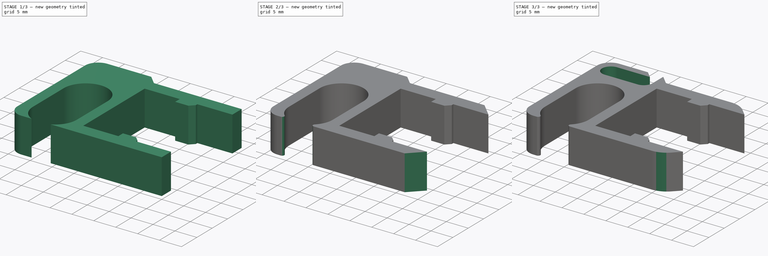
[diagram: build sequence overview — one tinted view per stage of 3, left to right]
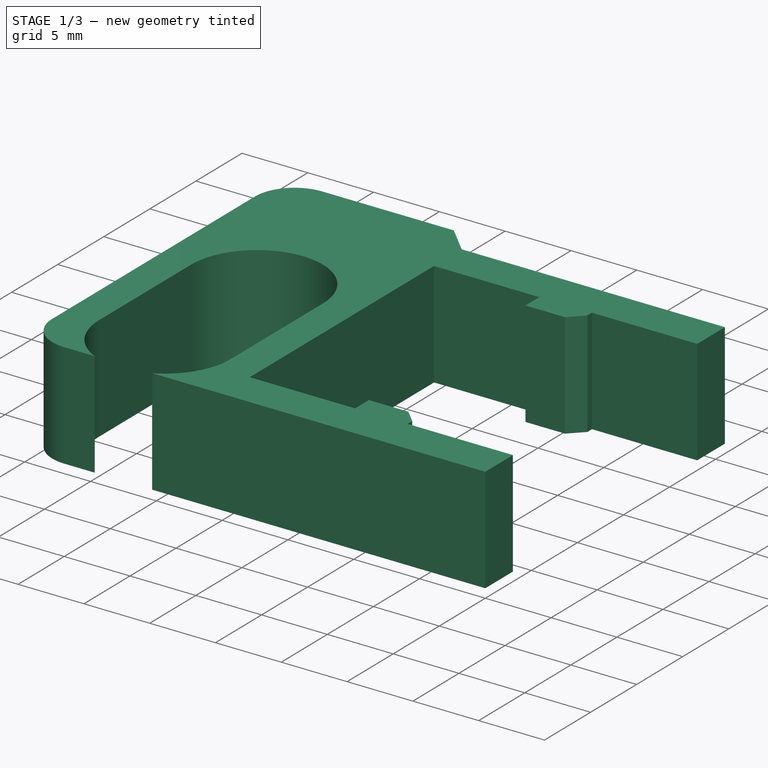
[diagram: stage 1 of 3 — iso view after this stage's code; geometry added in this stage tinted green]
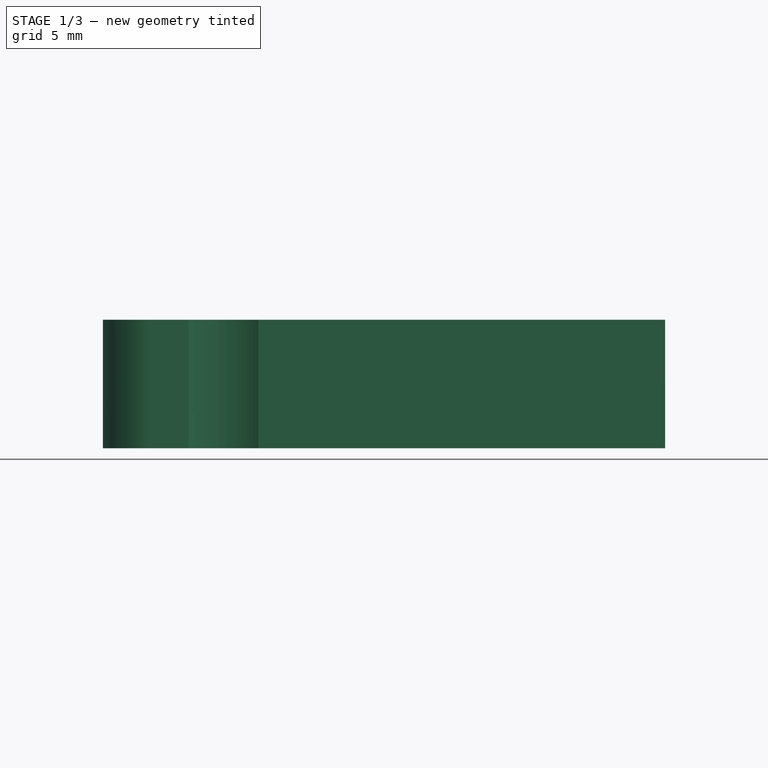
[diagram: stage 1 of 3 — front view after this stage's code; geometry added in this stage tinted green]
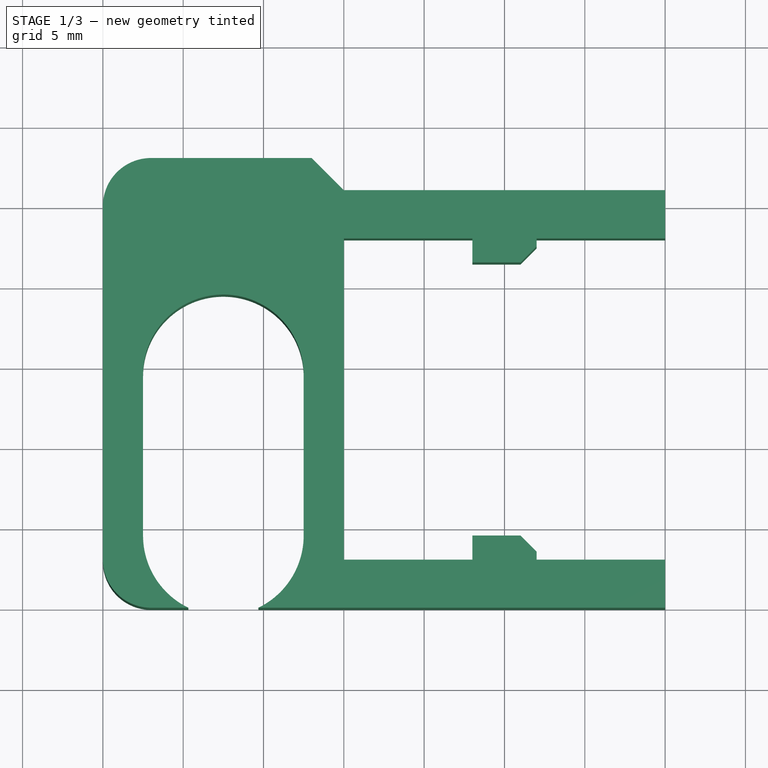
[diagram: stage 1 of 3 — top view after this stage's code; geometry added in this stage tinted green]
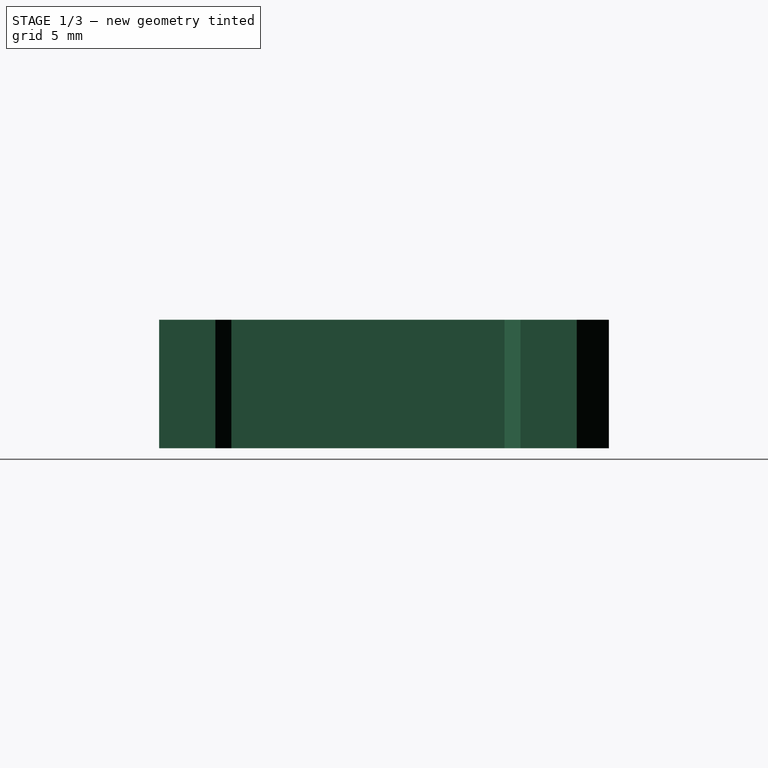
[diagram: stage 1 of 3 — right view after this stage's code; geometry added in this stage tinted green]
FCSTD DOCUMENT  (FreeCAD 0.17R13528 (Git))
Label: cable_clip_v0.1
License: CreativeCommons Attribution-ShareAlike
LicenseURL: http://creativecommons.org/licenses/by-sa/4.0/
objects: PartDesign::Fillet×4, Sketcher::SketchObject×3, PartDesign::Pad×2, PartDesign::Chamfer×1, PartDesign::Pocket×1, PartDesign::Body×1
note: 15 computed .brp shape members not serialized (recipe doc carries the construction recipe); baked Part::Feature solids carry a one-line shape summary decoded from their .brp

FEATURE [Sketcher::SketchObject] Sketch
  MapMode = 5
  Support = -> [XY_Plane]
  sketch-geometry (17):
    g0: LineSegment StartX=0 StartY=0 StartZ=0 EndX=0 EndY=28 EndZ=0
    g1: LineSegment StartX=35 StartY=26 StartZ=0 EndX=35 EndY=23 EndZ=0
    g2: LineSegment StartX=35 StartY=23 StartZ=0 EndX=15 EndY=23 EndZ=0
    g3: LineSegment StartX=15 StartY=3 StartZ=0 EndX=35 EndY=3 EndZ=0
    g4: LineSegment StartX=35 StartY=3 StartZ=0 EndX=35 EndY=0 EndZ=0
    g5: LineSegment StartX=15 StartY=23 StartZ=0 EndX=15 EndY=3 EndZ=0
    g6: ArcOfCircle CenterX=7.5 CenterY=14.5 CenterZ=0 NormalX=0 NormalY=0 NormalZ=1 AngleXU=0 Radius=5 StartAngle=0 EndAngle=3.14159
    g7: LineSegment [constr] StartX=2.5 StartY=14.5 StartZ=0 EndX=12.5 EndY=14.5 EndZ=0
    g8: LineSegment StartX=12.5 StartY=14.5 StartZ=0 EndX=12.5 EndY=4.5 EndZ=0
    g9: LineSegment StartX=2.5 StartY=4.5 StartZ=0 EndX=2.5 EndY=14.5 EndZ=0
    g10: LineSegment StartX=0 StartY=0 StartZ=0 EndX=5.32055 EndY=0 EndZ=0
    g11: LineSegment StartX=9.67945 StartY=0 StartZ=0 EndX=35 EndY=0 EndZ=0
    g12: ArcOfCircle CenterX=7.5 CenterY=4.5 CenterZ=0 NormalX=0 NormalY=0 NormalZ=1 AngleXU=0 Radius=5 StartAngle=3.14159 EndAngle=4.26136
    g13: ArcOfCircle CenterX=7.5 CenterY=4.5 CenterZ=0 NormalX=0 NormalY=0 NormalZ=1 AngleXU=0 Radius=5 StartAngle=5.16342 EndAngle=6.28319
    g14: LineSegment StartX=0 StartY=28 StartZ=0 EndX=13 EndY=28 EndZ=0
    g15: LineSegment StartX=13 StartY=28 StartZ=0 EndX=15 EndY=26 EndZ=0
    g16: LineSegment StartX=15 StartY=26 StartZ=0 EndX=35 EndY=26 EndZ=0
  constraints (51):
    c: Coincident(g1,g2)
    c: Coincident(g5,g3)
    c: Coincident(g3,g4)
    c: Coincident(g0,g-1)
    c: Vertical(g0)
    c: Vertical(g4)
    c: Vertical(g1)
    c: Horizontal(g2)
    c: Horizontal(g3)
    c: DistanceY(g4,g4) = 3
    c: DistanceY(g1,g1) = 3
    c: DistanceX(g3,g3) = 20
    c: DistanceY(g5,g2) = 20
    c: DistanceX(g0,g1) = 35
    c: Coincident(g5,g2)
    c: DistanceX(g2,g2) = 20
    c: Radius(g6) = 5
    c: Horizontal(g7)
    c: Vertical(g8)
    c: Vertical(g9)
    c: PointOnObject(g6,g7)
    c: DistanceX(g8,g3) = 2.5
    c: Coincident(g4,g11)
    c: Coincident(g0,g10)
    c: Horizontal(g10)
    c: Horizontal(g11)
    c: Vertical(g5)
    c: Coincident(g6,g7)
    c: Coincident(g6,g7)
    c: PointOnObject(g12,g9)
    c: PointOnObject(g13,g8)
    c: Coincident(g12,g13)
    c: Tangent(g9,g12) = 1.5708
    c: Coincident(g6,g9)
    c: Coincident(g6,g8)
    c: Coincident(g12,g10)
    c: Coincident(g11,g13)
    c: PointOnObject(g11,g-1)
    c: Tangent(g8,g13) = 1.5708
    c: DistanceY(g12) = 4.5
    c: Equal(g13,g12)
    c: DistanceY(g9,g9) = 10
    c: Coincident(g14,g15)
    c: Coincident(g15,g16)
    c: Coincident(g1,g16)
    c: Horizontal(g16)
    c: Angle(g15) = -0.785398
    c: DistanceX(g15,g2) = 0
    c: Horizontal(g14)
    c: DistanceY(g0,g0) = 28
    c: Coincident(g0,g14)
FEATURE [PartDesign::Pad] Pad
  Length = 8
  Length2 = 100
  Profile = -> Sketch
  Type = 0
FEATURE [Sketcher::SketchObject] Sketch001
  ExternalGeometry = -> [Pad]
  MapMode = 5
  Placement = pos=(0,0,8) rot=(0,0,1;0rad)
  Support = -> [Pad]
  sketch-geometry (14):
    g0: LineSegment StartX=23 StartY=23 StartZ=0 EndX=27 EndY=23 EndZ=0
    g1: LineSegment StartX=27 StartY=23 StartZ=0 EndX=27 EndY=22.5 EndZ=0
    g2: LineSegment StartX=26 StartY=21.5 StartZ=0 EndX=23 EndY=21.5 EndZ=0
    g3: LineSegment StartX=23 StartY=21.5 StartZ=0 EndX=23 EndY=23 EndZ=0
    g4: LineSegment StartX=23 StartY=3 StartZ=0 EndX=27 EndY=3 EndZ=0
    g5: LineSegment StartX=27 StartY=3 StartZ=0 EndX=27 EndY=3.5 EndZ=0
    g6: LineSegment StartX=26 StartY=4.5 StartZ=0 EndX=23 EndY=4.5 EndZ=0
    g7: LineSegment StartX=23 StartY=4.5 StartZ=0 EndX=23 EndY=3 EndZ=0
    g8: LineSegment [constr] StartX=15 StartY=23 StartZ=0 EndX=25 EndY=23 EndZ=0
    g9: LineSegment [constr] StartX=25 StartY=23 StartZ=0 EndX=25 EndY=3 EndZ=0
    g10: LineSegment [constr] StartX=25 StartY=3 StartZ=0 EndX=15 EndY=3 EndZ=0
    g11: LineSegment [constr] StartX=15 StartY=3 StartZ=0 EndX=15 EndY=23 EndZ=0
    g12: LineSegment StartX=27 StartY=22.5 StartZ=0 EndX=26 EndY=21.5 EndZ=0
    g13: LineSegment StartX=26 StartY=4.5 StartZ=0 EndX=27 EndY=3.5 EndZ=0
  constraints (42):
    c: Coincident(g0,g3)
    c: Horizontal(g0)
    c: DistanceX(g1) = 27
    c: DistanceY(g1) = 23
    c: Coincident(g0,g1)
    c: DistanceY(g1,g1) = 0.5
    c: Angle(g12) = -2.35619
    c: DistanceX(g12,g12) = 1
    c: Coincident(g1,g12)
    c: Coincident(g2,g12)
    c: Coincident(g2,g3)
    c: Coincident(g8,g9)
    c: Coincident(g8,g11)
    c: Coincident(g10,g11)
    c: Coincident(g6,g7)
    c: Coincident(g4,g7)
    c: Coincident(g9,g10)
    c: Coincident(g4,g5)
    c: Coincident(g5,g13)
    c: Coincident(g6,g13)
    c: DistanceX(g8,g8) = 10
    c: Horizontal(g8)
    c: Horizontal(g2)
    c: Horizontal(g6)
    c: Horizontal(g4)
    c: Horizontal(g10)
    c: Vertical(g7)
    c: Vertical(g11)
    c: Vertical(g9)
    c: Vertical(g5)
    c: Vertical(g3)
    c: Vertical(g1)
    c: DistanceX(g8,g0) = 2
    c: DistanceX(g0,g0) = 4
    c: DistanceY(g8) = 23
    c: DistanceX(g5,g1) = 0
    c: DistanceY(g5,g1) = 19
    c: DistanceY(g5,g5) = 0.5
    c: DistanceX(g4,g4) = 4
    c: Angle(g13) = -0.785398
    c: DistanceY(g13,g13) = 1
    c: PointOnObject(g9,g4)
FEATURE [PartDesign::Pad] Pad001
  BaseFeature = -> Pad
  Length = 8
  Length2 = 100
  Profile = -> Sketch001
  Reversed = true
  Type = 0
FEATURE [PartDesign::Fillet] Fillet
  Base = -> Pad001 [Edge8,Edge46]
  BaseFeature = -> Pad001
  Radius = 3
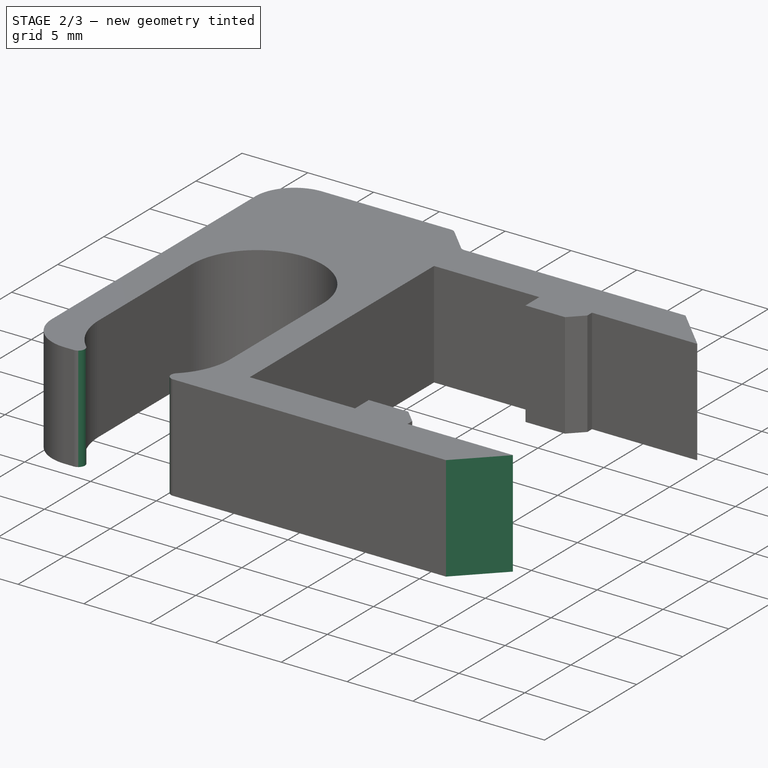
[diagram: stage 2 of 3 — iso view after this stage's code; geometry added in this stage tinted green]
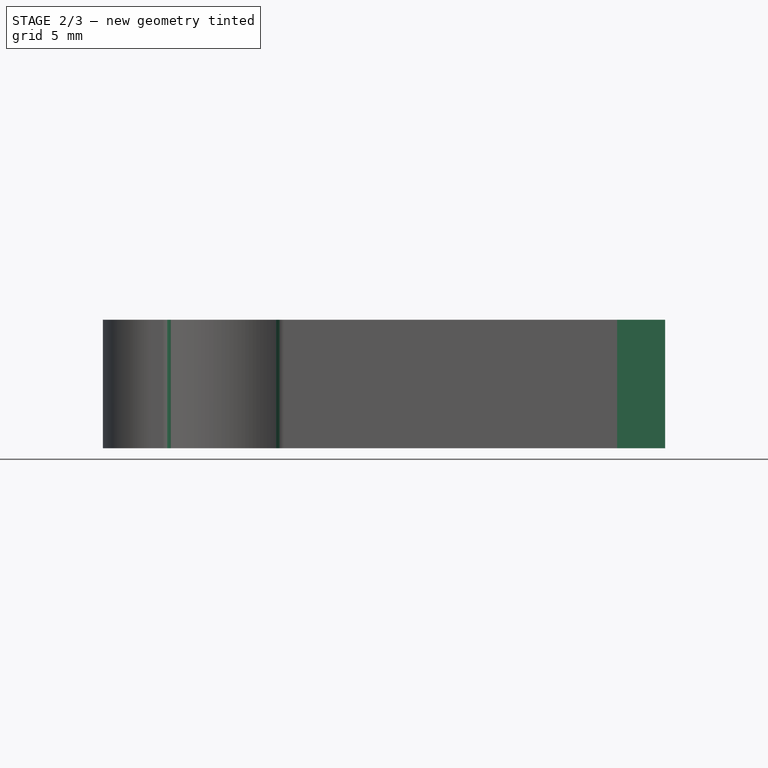
[diagram: stage 2 of 3 — front view after this stage's code; geometry added in this stage tinted green]
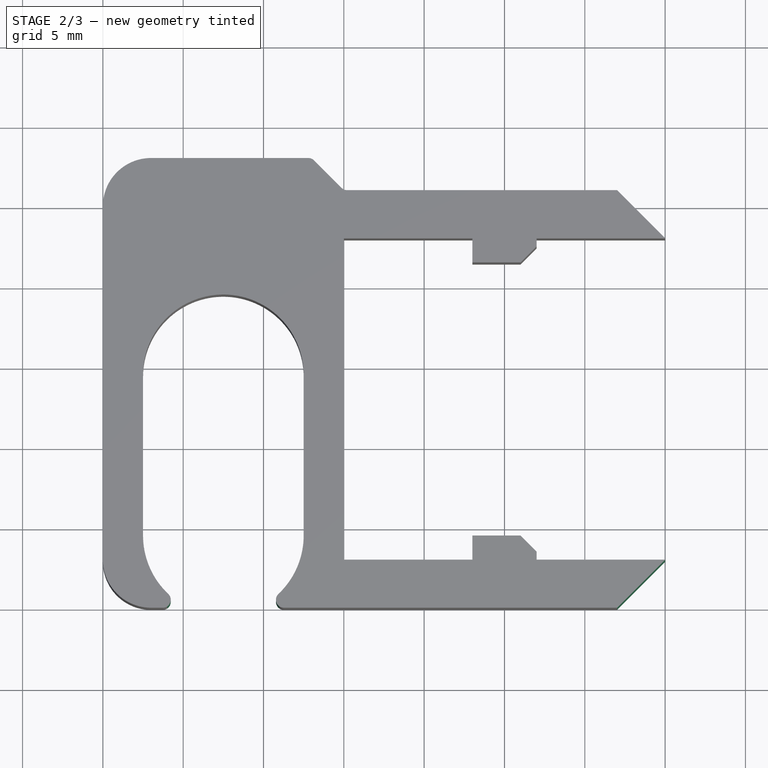
[diagram: stage 2 of 3 — top view after this stage's code; geometry added in this stage tinted green]
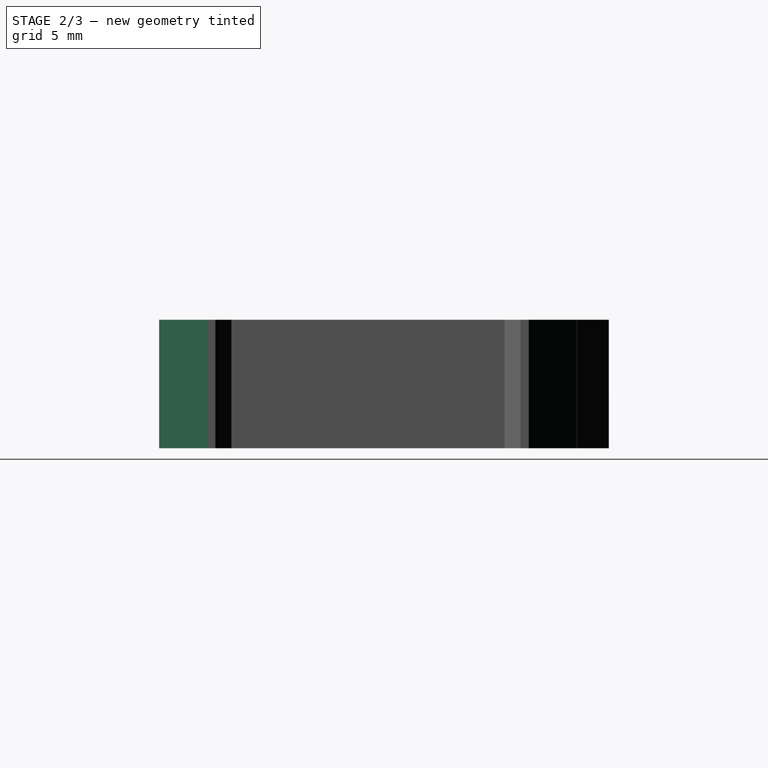
[diagram: stage 2 of 3 — right view after this stage's code; geometry added in this stage tinted green]
FEATURE [PartDesign::Fillet] Fillet001
  Base = -> Fillet [Edge55,Edge53,Edge3,Edge56]
  BaseFeature = -> Fillet
  Radius = 0.5
FEATURE [PartDesign::Chamfer] Chamfer
  Base = -> Fillet001 [Edge70,Edge69]
  BaseFeature = -> Fillet001
  Size = 2.99
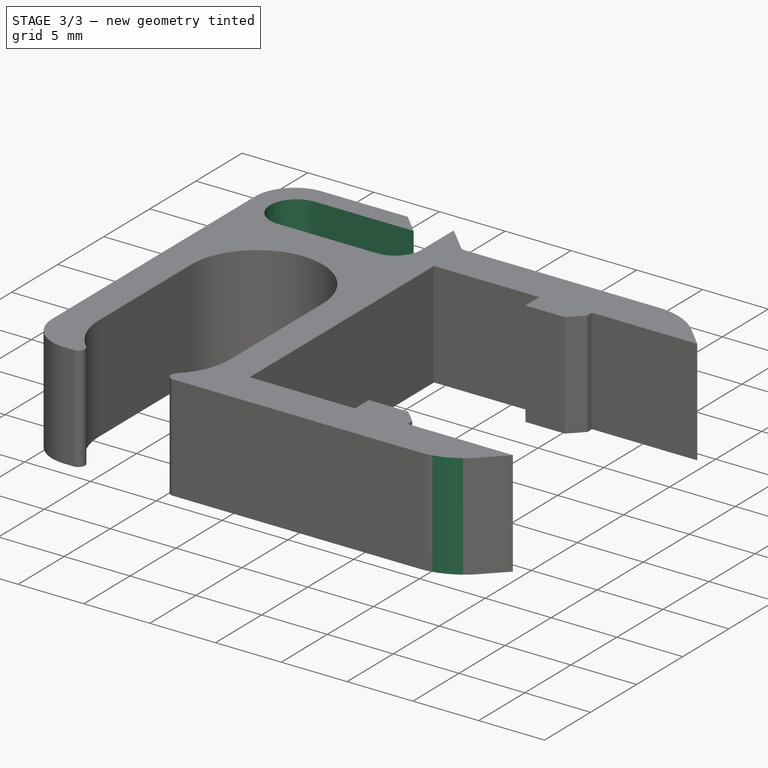
[diagram: stage 3 of 3 — iso view after this stage's code; geometry added in this stage tinted green]
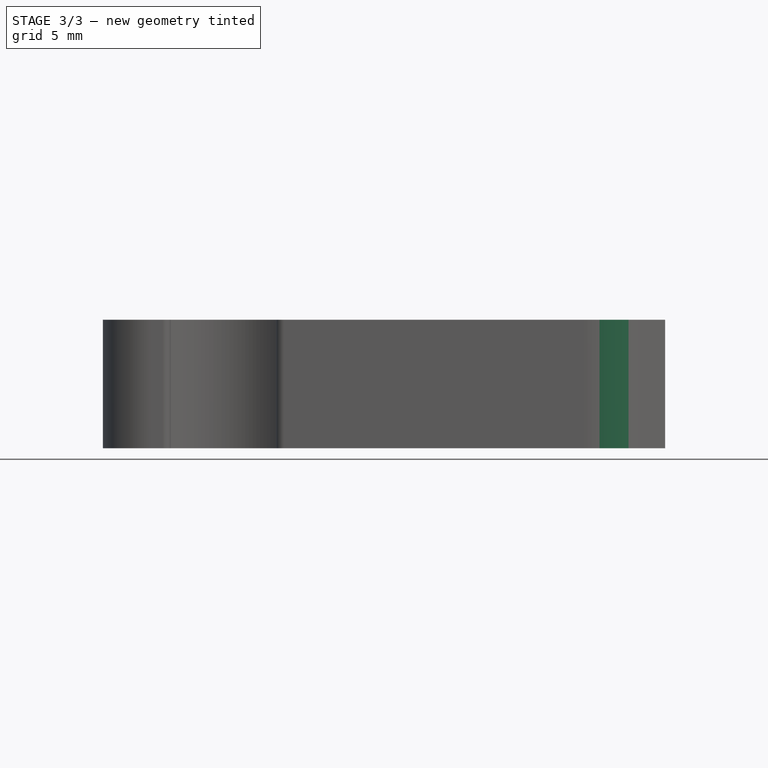
[diagram: stage 3 of 3 — front view after this stage's code; geometry added in this stage tinted green]
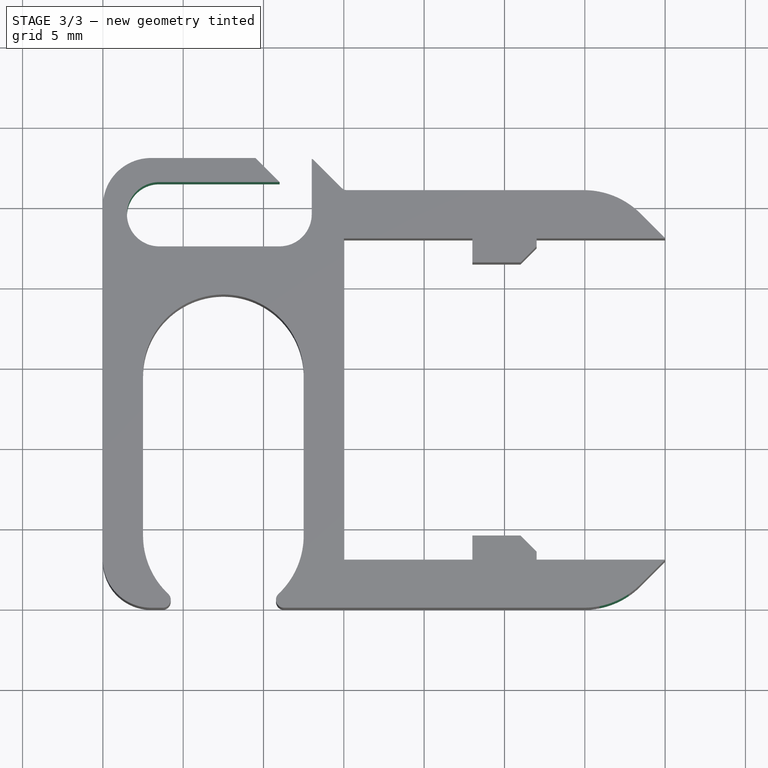
[diagram: stage 3 of 3 — top view after this stage's code; geometry added in this stage tinted green]
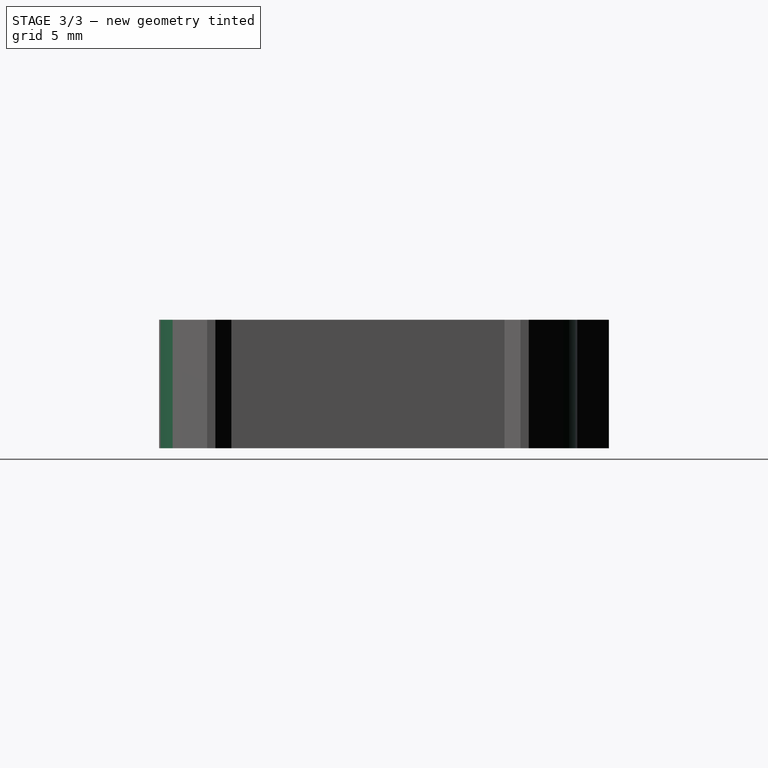
[diagram: stage 3 of 3 — right view after this stage's code; geometry added in this stage tinted green]
FEATURE [PartDesign::Fillet] Fillet002
  Base = -> Chamfer [Edge78,Edge29]
  BaseFeature = -> Chamfer
  Radius = 5
FEATURE [Sketcher::SketchObject] Sketch002
  MapMode = 5
  Placement = pos=(0,0,8) rot=(0,0,1;0rad)
  Support = -> [Fillet002]
  sketch-geometry (7):
    g0: LineSegment StartX=9.5 StartY=28 StartZ=0 EndX=11 EndY=26.5 EndZ=0
    g1: LineSegment StartX=11 StartY=26.5 StartZ=0 EndX=3.5 EndY=26.5 EndZ=0
    g2: LineSegment [constr] StartX=3.5 StartY=26.5 StartZ=0 EndX=3.5 EndY=22.5 EndZ=0
    g3: LineSegment StartX=3.5 StartY=22.5 StartZ=0 EndX=13 EndY=22.5 EndZ=0
    g4: LineSegment StartX=13 StartY=22.5 StartZ=0 EndX=13 EndY=28 EndZ=0
    g5: ArcOfCircle CenterX=3.5 CenterY=24.5 CenterZ=0 NormalX=0 NormalY=0 NormalZ=1 AngleXU=0 Radius=2 StartAngle=1.5708 EndAngle=4.71239
    g6: LineSegment StartX=9.5 StartY=28 StartZ=0 EndX=13 EndY=28 EndZ=0
  constraints (21):
    c: Coincident(g0,g1)
    c: Horizontal(g1)
    c: Coincident(g1,g2)
    c: Vertical(g2)
    c: Coincident(g2,g3)
    c: Horizontal(g3)
    c: Coincident(g3,g4)
    c: Vertical(g4)
    c: PointOnObject(g5,g2)
    c: Coincident(g5,g1)
    c: Coincident(g5,g2)
    c: Radius(g5) = 2
    c: Coincident(g6,g0)
    c: Coincident(g6,g4)
    c: Horizontal(g6)
    c: DistanceY(g5) = 24.5
    c: DistanceX(g5) = 3.5
    c: DistanceY(g0,g0) = 1.5
    c: DistanceX(g3,g3) = 9.5
    c: Angle(g0) = -0.785398
    c: DistanceX(g0,g4) = 2
FEATURE [PartDesign::Pocket] Pocket
  BaseFeature = -> Fillet002
  Length = 5
  Length2 = 100
  Profile = -> Sketch002
  Refine = true
  Type = 1
FEATURE [PartDesign::Fillet] Fillet003
  Base = -> Pocket [Edge51]
  BaseFeature = -> Pocket
  Radius = 2
FEATURE [PartDesign::Body] Body
  Group = -> [Sketch,Pad,Sketch001,Pad001,Fillet,Fillet001,Chamfer,Fillet002,Sketch002,Pocket,Fillet003]
  Origin = -> Origin
  Tip = -> Fillet003
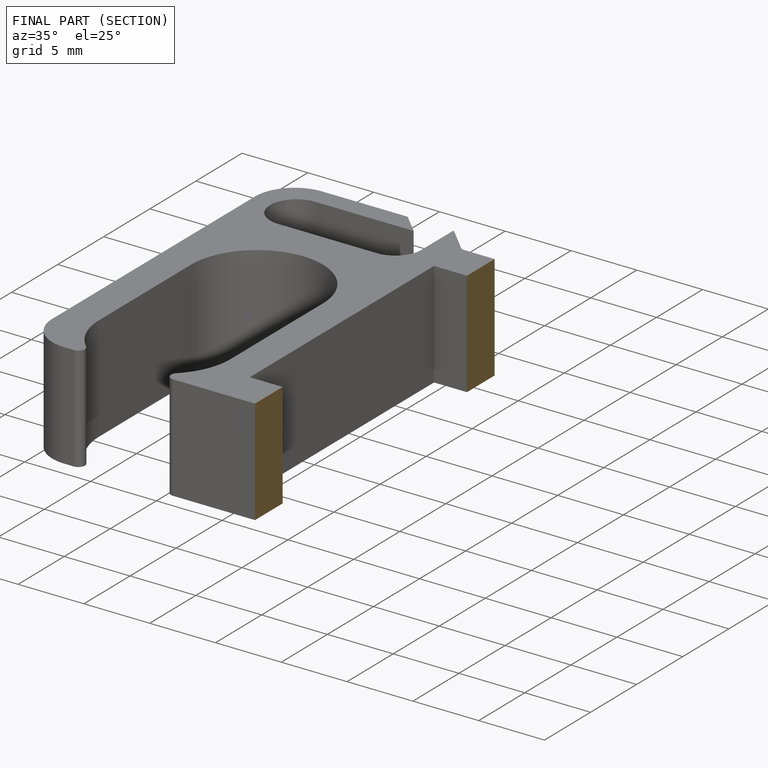
[diagram: finished part — half-section view (interior)]
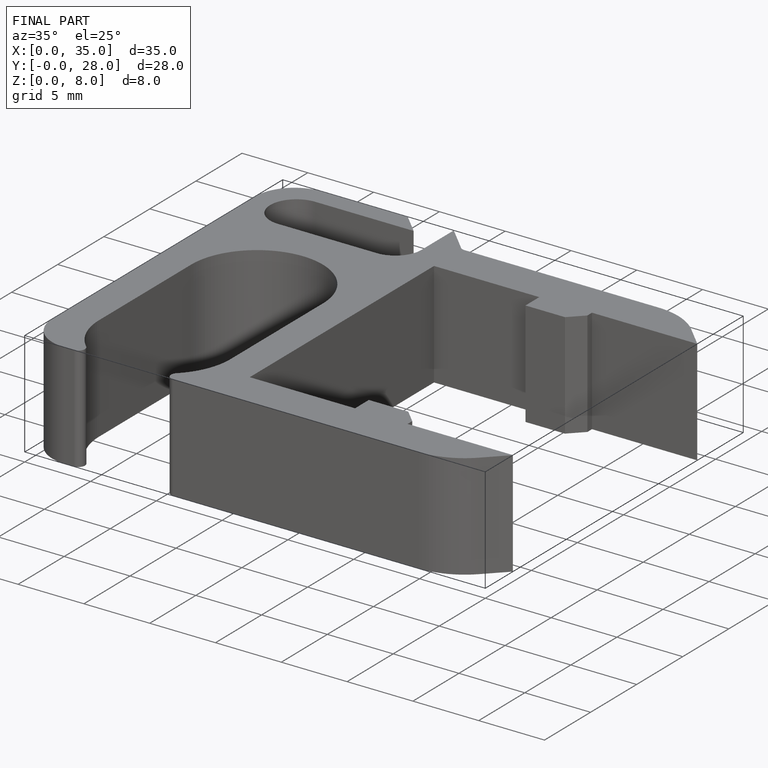
[diagram: finished part — iso view with bounding-box wireframe]
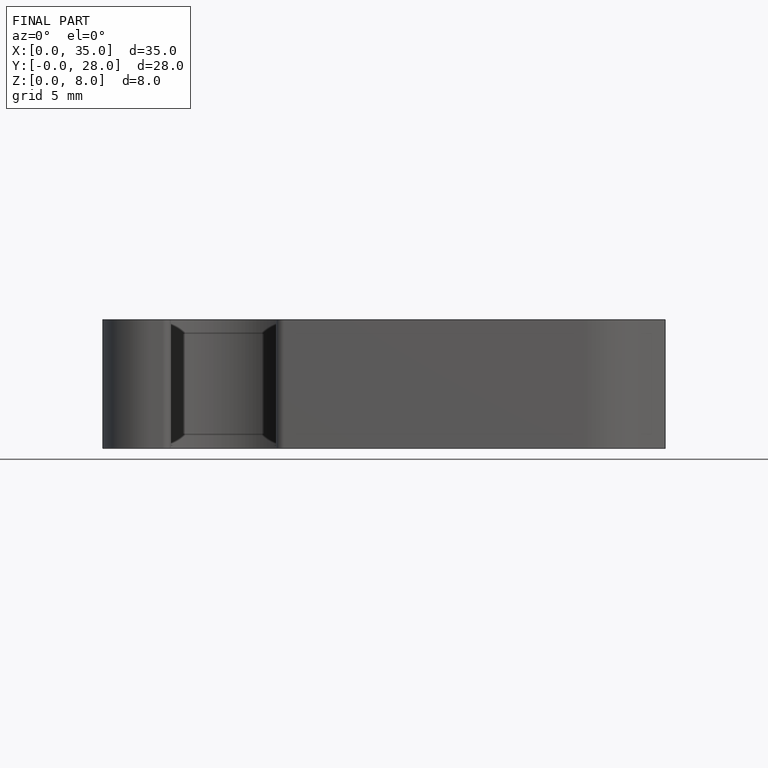
[diagram: finished part — front view with bounding-box wireframe]
